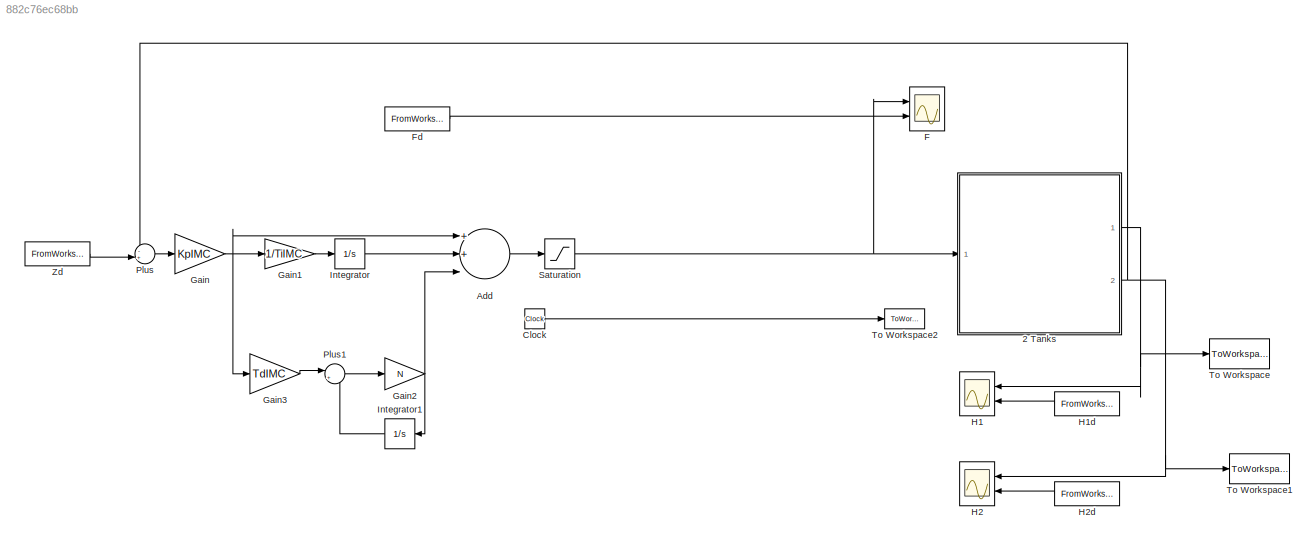
MODEL slx_882c76ec68bb
KIND model
CONFIG AbsTol = auto
CONFIG EnableMultiTasking = off
CONFIG FixedStep = dt
CONFIG MaxStep = auto
CONFIG MinStep = auto
CONFIG RelTol = 1e-3
CONFIG SampleTimeConstraint = Unconstrained
CONFIG Solver = FixedStepAuto
CONFIG SolverName = FixedStepAuto
CONFIG StartTime = 0.0
CONFIG StopTime = tfinal
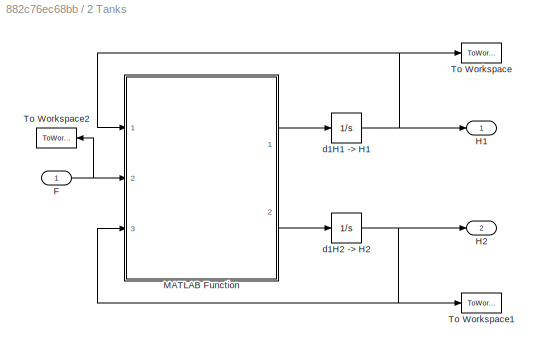
BLOCK [SubSystem] 2 Tanks
  Ports = [1, 2]
  RequestExecContextInheritance = off
BLOCK [Inport] 2 Tanks/F
  IconDisplay = Port number
BLOCK [Outport] 2 Tanks/H1
  IconDisplay = Port number
BLOCK [Outport] 2 Tanks/H2
  IconDisplay = Port number
  Port = 2
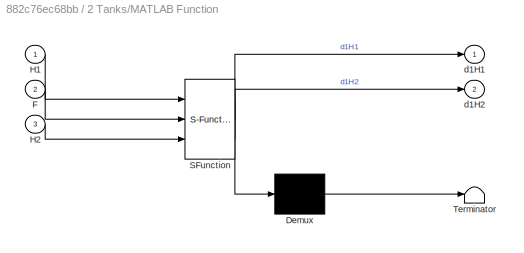
BLOCK [SubSystem] 2 Tanks/MATLAB Function
  ErrorFcn = Stateflow.Translate.translate
  PermitHierarchicalResolution = ExplicitOnly
  Ports = [3, 2]
  RequestExecContextInheritance = off
  SFBlockType = MATLAB Function
  TreatAsAtomicUnit = on
BLOCK [Demux] 2 Tanks/MATLAB Function/ Demux 
  Outputs = 1
  Ports = [1, 1]
BLOCK [S-Function] 2 Tanks/MATLAB Function/ SFunction 
  EnableBusSupport = on
  FunctionName = sf_sfun
  Parameters = a1,a2,a3,a4
  PortCounts = [3 3]
  Ports = [3, 3]
  SFcnIsStateOwnerBlock = off
  SFunctionDeploymentMode = off
  Tag = Stateflow S-Function cobem_IMC 3
BLOCK [Terminator] 2 Tanks/MATLAB Function/ Terminator 
BLOCK [Inport] 2 Tanks/MATLAB Function/F
  IconDisplay = Port number
  Port = 2
BLOCK [Inport] 2 Tanks/MATLAB Function/H1
  IconDisplay = Port number
BLOCK [Inport] 2 Tanks/MATLAB Function/H2
  IconDisplay = Port number
  Port = 3
BLOCK [Outport] 2 Tanks/MATLAB Function/d1H1
  IconDisplay = Port number
BLOCK [Outport] 2 Tanks/MATLAB Function/d1H2
  IconDisplay = Port number
  Port = 2
BLOCK [ToWorkspace] 2 Tanks/To Workspace
  FixptAsFi = on
  MaxDataPoints = inf
  Ports = [1]
  SampleTime = -1
  Save2DSignal = 3-D array (concatenate along third dimension)
  VariableName = h1f
BLOCK [ToWorkspace] 2 Tanks/To Workspace1
  FixptAsFi = on
  MaxDataPoints = inf
  Ports = [1]
  SampleTime = -1
  Save2DSignal = 3-D array (concatenate along third dimension)
  VariableName = h2f
BLOCK [ToWorkspace] 2 Tanks/To Workspace2
  FixptAsFi = on
  MaxDataPoints = inf
  Ports = [1]
  SampleTime = -1
  Save2DSignal = 3-D array (concatenate along third dimension)
  VariableName = ff
BLOCK [Integrator] 2 Tanks/d1H1 -> H1
  InitialCondition = h10
  LimitOutput = on
  LowerSaturationLimit = 0
  Ports = [1, 1]
  UpperSaturationLimit = H1max
BLOCK [Integrator] 2 Tanks/d1H2 -> H2
  InitialCondition = h20
  LimitOutput = on
  LowerSaturationLimit = 0
  Ports = [1, 1]
  UpperSaturationLimit = H2max
BLOCK [Sum] Add
  InputSameDT = off
  Inputs = 3
  OutDataTypeStr = Inherit: Inherit via internal rule
  Ports = [3, 1]
  SaturateOnIntegerOverflow = off
BLOCK [Clock] Clock
BLOCK [Scope] F
  Floating = off
  NumInputPorts = 2
  Ports = [2]
  ScopeSpecificationString = Simulink.scopes.TimeScopeBlockCfg('CurrentConfiguration', extmgr.ConfigurationSet(extmgr.Configuration('Core','General UI',true),extmgr.Configuration('Core','Source UI',true),extmgr.Configuration('Sources','WiredSimulink',true,'DataLoggingVariableName','f_saida','DataLoggingSaveFormat','StructureWithTime','DataLoggingDecimation','1','DataLoggingDecimateData',true,'DataLogging',true),extmgr.Configu...<+1701ch>
BLOCK [FromWorkspace] Fd
  OutputAfterFinalValue = Holding final value
  SampleTime = 0
  VariableName = [t' Fd']
  ZeroCross = on
BLOCK [Gain] Gain
  Gain = KpIMC
  OutDataTypeStr = Inherit: Inherit via internal rule
  ParamDataTypeStr = Inherit: Inherit via internal rule
  SaturateOnIntegerOverflow = off
BLOCK [Gain] Gain1
  Gain = 1/TiIMC
  OutDataTypeStr = Inherit: Inherit via internal rule
  ParamDataTypeStr = Inherit: Inherit via internal rule
  SaturateOnIntegerOverflow = off
BLOCK [Gain] Gain2
  Gain = N
  OutDataTypeStr = Inherit: Inherit via internal rule
  ParamDataTypeStr = Inherit: Inherit via internal rule
  SaturateOnIntegerOverflow = off
BLOCK [Gain] Gain3
  Gain = TdIMC
  OutDataTypeStr = Inherit: Inherit via internal rule
  ParamDataTypeStr = Inherit: Inherit via internal rule
  SaturateOnIntegerOverflow = off
BLOCK [Scope] H1
  Floating = off
  NumInputPorts = 2
  Ports = [2]
  ScopeSpecificationString = Simulink.scopes.TimeScopeBlockCfg('CurrentConfiguration', extmgr.ConfigurationSet(extmgr.Configuration('Core','General UI',true),extmgr.Configuration('Core','Source UI',true),extmgr.Configuration('Sources','WiredSimulink',true,'DataLoggingVariableName','h1_saida','DataLoggingSaveFormat','StructureWithTime','DataLoggingDecimation','1','DataLoggingDecimateData',true,'DataLogging',true),extmgr.Config...<+1716ch>
BLOCK [FromWorkspace] H1d
  OutputAfterFinalValue = Holding final value
  SampleTime = 0
  VariableName = [t' H1d']
  ZeroCross = on
BLOCK [Scope] H2
  Floating = off
  NumInputPorts = 2
  Ports = [2]
  ScopeSpecificationString = Simulink.scopes.TimeScopeBlockCfg('CurrentConfiguration', extmgr.ConfigurationSet(extmgr.Configuration('Core','General UI',true),extmgr.Configuration('Core','Source UI',true),extmgr.Configuration('Sources','WiredSimulink',true,'DataLoggingSaveFormat','StructureWithTime','DataLoggingDecimation','1','DataLoggingDecimateData',true,'DataLogging',true,'DataLoggingVariableName','h2_saida'),extmgr.Config...<+1741ch>
BLOCK [FromWorkspace] H2d
  OutputAfterFinalValue = Holding final value
  SampleTime = 0
  VariableName = [t' H2d']
  ZeroCross = on
BLOCK [Integrator] Integrator
  Ports = [1, 1]
BLOCK [Integrator] Integrator1
  Ports = [1, 1]
BLOCK [Sum] Plus
  IconShape = round
  InputSameDT = off
  Inputs = -+|
  OutDataTypeStr = Inherit: Inherit via internal rule
  Ports = [2, 1]
  SaturateOnIntegerOverflow = off
BLOCK [Sum] Plus1
  IconShape = round
  InputSameDT = off
  Inputs = |+-
  OutDataTypeStr = Inherit: Inherit via internal rule
  Ports = [2, 1]
  SaturateOnIntegerOverflow = off
BLOCK [Saturate] Saturation
  InputPortMap = u0
  LowerLimit = satF_inf
  Ports = [1, 1]
  UpperLimit = satF_sup
BLOCK [ToWorkspace] To Workspace
  FixptAsFi = on
  MaxDataPoints = inf
  Ports = [1]
  SampleTime = -1
  Save2DSignal = 3-D array (concatenate along third dimension)
  VariableName = H1
BLOCK [ToWorkspace] To Workspace1
  FixptAsFi = on
  MaxDataPoints = inf
  Ports = [1]
  SampleTime = -1
  Save2DSignal = 3-D array (concatenate along third dimension)
  VariableName = H2
BLOCK [ToWorkspace] To Workspace2
  FixptAsFi = on
  MaxDataPoints = inf
  Ports = [1]
  SampleTime = -1
  Save2DSignal = 3-D array (concatenate along third dimension)
  VariableName = tf
BLOCK [FromWorkspace] Zd
  OutputAfterFinalValue = Holding final value
  SampleTime = 0
  VariableName = [t' Zd']
  ZeroCross = on
NET 2 Tanks/F:1 -> 2 Tanks/MATLAB Function:2, 2 Tanks/To Workspace2:1
LINE 2 Tanks/MATLAB Function:1 -> 2 Tanks/d1H1 -> H1:1
LINE 2 Tanks/MATLAB Function:2 -> 2 Tanks/d1H2 -> H2:1
NET 2 Tanks/d1H1 -> H1:1 -> 2 Tanks/H1:1, 2 Tanks/MATLAB Function:1, 2 Tanks/To Workspace:1
NET 2 Tanks/d1H2 -> H2:1 -> 2 Tanks/H2:1, 2 Tanks/MATLAB Function:3, 2 Tanks/To Workspace1:1
NET 2 Tanks:1 -> H1:1, To Workspace:1
NET 2 Tanks:2 -> H2:1, Plus:1, To Workspace1:1
LINE Add:1 -> Saturation:1
LINE Clock:1 -> To Workspace2:1
LINE Fd:1 -> F:2
LINE Gain1:1 -> Integrator:1
NET Gain2:1 -> Add:3, Integrator1:1
LINE Gain3:1 -> Plus1:1
NET Gain:1 -> Add:1, Gain1:1, Gain3:1
LINE H1d:1 -> H1:2
LINE H2d:1 -> H2:2
LINE Integrator1:1 -> Plus1:2
LINE Integrator:1 -> Add:2
LINE Plus1:1 -> Gain2:1
LINE Plus:1 -> Gain:1
NET Saturation:1 -> 2 Tanks:1, F:1
LINE Zd:1 -> Plus:2
note: NET lines group one-source signal fan-out (src -> all destinations, sorted); 1:1 wires keep LINE
CHART 2 Tanks/MATLAB Function states=1 transitions=1
  STATE_LABEL 'eML_blk_kernel()'
  STATE_LABEL 'SCRIPT:\nfunction [d1H1, d1H2] = TwoTanks(H1, F, H2, a1, a2, a3, a4)\n  \n  % Sistema Dinâmico\n    d1H1 = a1*F - a2*sqrt(H1);\n    \n    d1H2 = a3*(sqrt(H1)/(H2^2)) - a4*(1/(H2^1.5));\n'
